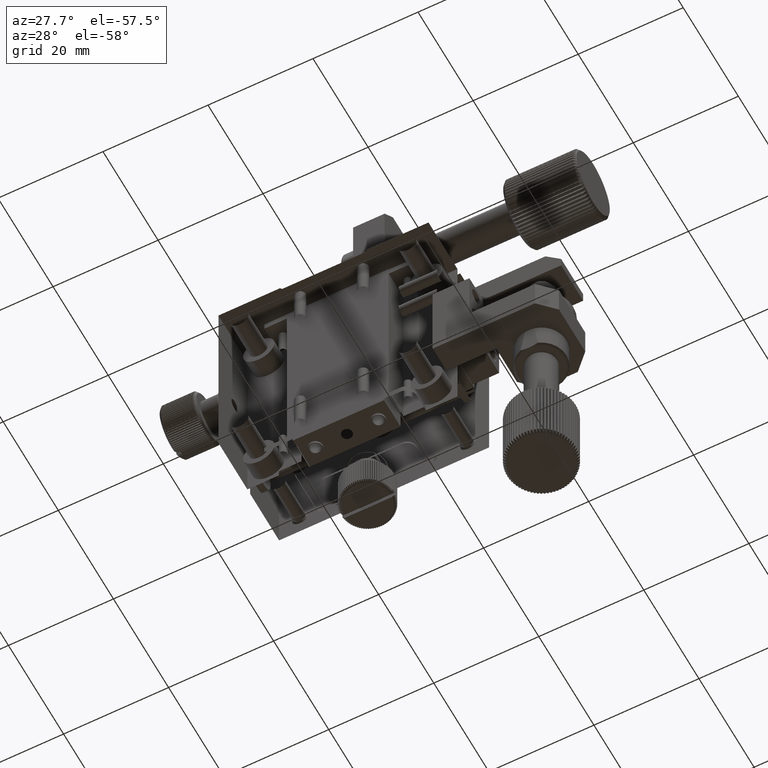
[diagram: clean part render]
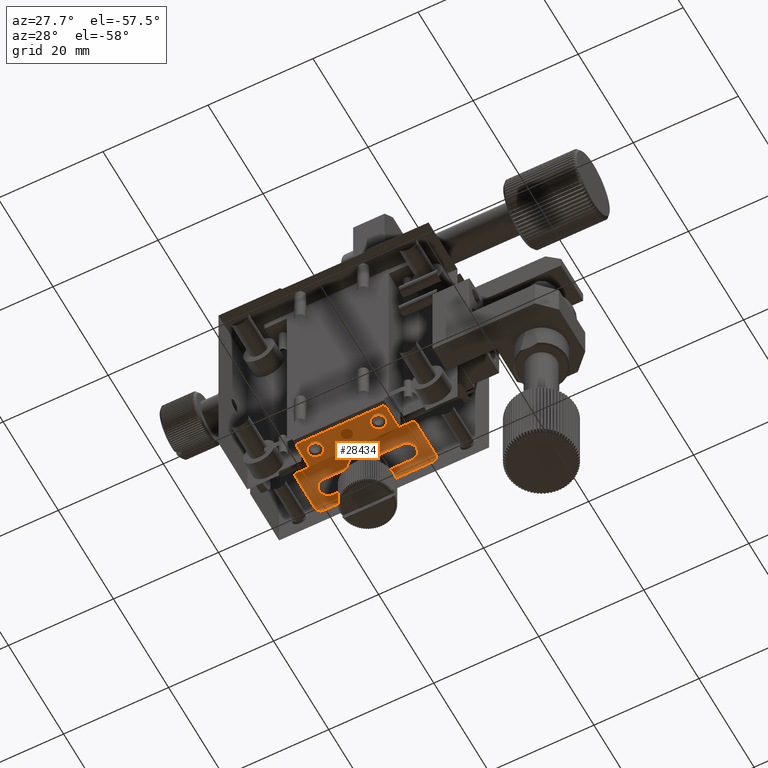
[diagram: same view with one face highlighted and labeled with its STEP entity id]
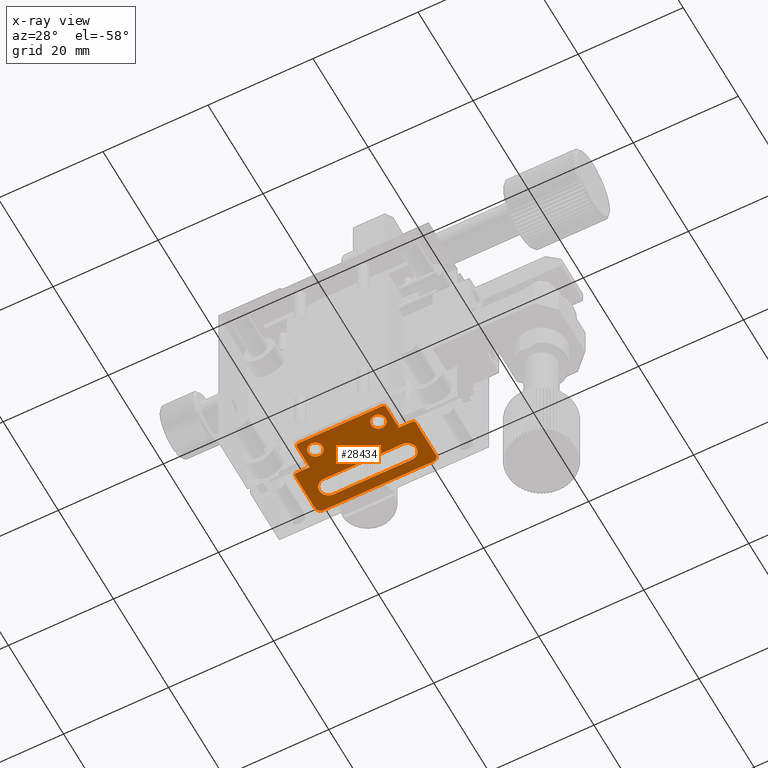
[diagram: x-ray of the same camera — body ghosted, the highlighted face saturated]
A machine part, auxiliary view. The second image highlights one B-rep face of the part: STEP entity #28434.
The next image is the same camera in x-ray: the body ghosted, the highlighted face saturated — about 5% of this face is hidden behind the body in this view.
In plain terms, the highlighted planar face has unit normal (0, 0, 1).
Its self-contained STEP definition (entity closure, byte-faithful):
#172 = ORIENTED_EDGE ( 'NONE', *, *, #46469, .T. ) ;
#956 = AXIS2_PLACEMENT_3D ( 'NONE', #31503, #23338, #20231 ) ;
#1008 = EDGE_CURVE ( 'NONE', #46246, #6740, #34084, .T. ) ;
#1275 = CARTESIAN_POINT ( 'NONE',  ( 9.000000000000431655, 11.64999999999976765, -40.50000000000000711 ) ) ;
#1372 = CARTESIAN_POINT ( 'NONE',  ( 28.50000000000006395, 11.14999999999993285, -40.50000000000000711 ) ) ;
#1432 = DIRECTION ( 'NONE',  ( -1.000000000000000000, 0.000000000000000000, 0.000000000000000000 ) ) ;
#1483 = EDGE_LOOP ( 'NONE', ( #42400 ) ) ;
#1701 = DIRECTION ( 'NONE',  ( 0.000000000000000000, -1.000000000000000000, -0.000000000000000000 ) ) ;
#1843 = FACE_BOUND ( 'NONE', #20347, .T. ) ;
#2092 = FACE_BOUND ( 'NONE', #5731, .T. ) ;
#2283 = DIRECTION ( 'NONE',  ( -1.000000000000000000, -0.000000000000000000, 0.000000000000000000 ) ) ;
#2513 = VERTEX_POINT ( 'NONE', #23003 ) ;
#2553 = CARTESIAN_POINT ( 'NONE',  ( 13.99999999999999112, 8.499999999999781508, -40.50000000000000711 ) ) ;
#2670 = CIRCLE ( 'NONE', #14076, 0.4999999999998339106 ) ;
#2686 = EDGE_CURVE ( 'NONE', #21165, #41440, #12070, .T. ) ;
#2764 = EDGE_CURVE ( 'NONE', #20065, #22789, #2917, .T. ) ;
#2917 = CIRCLE ( 'NONE', #18930, 1.750000000000029310 ) ;
#2983 = DIRECTION ( 'NONE',  ( -0.000000000000000000, 1.000000000000000000, 0.000000000000000000 ) ) ;
#4044 = LINE ( 'NONE', #33206, #34098 ) ;
#4833 = ORIENTED_EDGE ( 'NONE', *, *, #31830, .T. ) ;
#5213 = DIRECTION ( 'NONE',  ( 0.000000000000000000, 0.000000000000000000, 1.000000000000000000 ) ) ;
#5554 = ORIENTED_EDGE ( 'NONE', *, *, #41711, .T. ) ;
#5655 = PLANE ( 'NONE',  #956 ) ;
#5731 = EDGE_LOOP ( 'NONE', ( #11198 ) ) ;
#5873 = EDGE_LOOP ( 'NONE', ( #13518, #12963, #172, #20784, #13252, #41970, #4833, #12399, #41174, #26630, #34470, #42269, #30358, #10943 ) ) ;
#5891 = VECTOR ( 'NONE', #40843, 1000.000000000000000 ) ;
#6098 = EDGE_CURVE ( 'NONE', #41609, #41609, #45288, .T. ) ;
#6455 = VERTEX_POINT ( 'NONE', #24699 ) ;
#6530 = AXIS2_PLACEMENT_3D ( 'NONE', #25228, #7736, #43845 ) ;
#6556 = LINE ( 'NONE', #28817, #25734 ) ;
#6740 = VERTEX_POINT ( 'NONE', #31380 ) ;
#6867 = VECTOR ( 'NONE', #20343, 1000.000000000000000 ) ;
#6937 = VERTEX_POINT ( 'NONE', #37294 ) ;
#7251 = EDGE_CURVE ( 'NONE', #22789, #32557, #35839, .T. ) ;
#7607 = VERTEX_POINT ( 'NONE', #38751 ) ;
#7736 = DIRECTION ( 'NONE',  ( -0.000000000000000000, -0.000000000000000000, -1.000000000000000000 ) ) ;
#8126 = CIRCLE ( 'NONE', #45525, 0.9999999999998898659 ) ;
#8374 = CARTESIAN_POINT ( 'NONE',  ( 12.60000000000014531, 8.499999999999781508, -40.50000000000000711 ) ) ;
#9599 = CARTESIAN_POINT ( 'NONE',  ( 30.50000000000017764, 19.84999999999975273, -40.50000000000000711 ) ) ;
#10181 = AXIS2_PLACEMENT_3D ( 'NONE', #2553, #43381, #39116 ) ;
#10353 = CARTESIAN_POINT ( 'NONE',  ( 31.50000000000017408, 18.84999999999986287, -40.50000000000000711 ) ) ;
#10357 = EDGE_CURVE ( 'NONE', #11228, #7607, #40611, .T. ) ;
#10555 = EDGE_CURVE ( 'NONE', #45232, #18910, #6556, .T. ) ;
#10943 = ORIENTED_EDGE ( 'NONE', *, *, #37986, .T. ) ;
#11198 = ORIENTED_EDGE ( 'NONE', *, *, #6098, .T. ) ;
#11228 = VERTEX_POINT ( 'NONE', #39212 ) ;
#12070 = CIRCLE ( 'NONE', #44876, 0.5000000000000559552 ) ;
#12399 = ORIENTED_EDGE ( 'NONE', *, *, #10555, .T. ) ;
#12465 = CARTESIAN_POINT ( 'NONE',  ( 27.50000000000050804, 17.84999999999980602, -40.50000000000000711 ) ) ;
#12963 = ORIENTED_EDGE ( 'NONE', *, *, #33928, .T. ) ;
#13070 = AXIS2_PLACEMENT_3D ( 'NONE', #15237, #5213, #27438 ) ;
#13161 = LINE ( 'NONE', #42096, #6867 ) ;
#13252 = ORIENTED_EDGE ( 'NONE', *, *, #19727, .T. ) ;
#13395 = CIRCLE ( 'NONE', #6530, 1.750000000000029310 ) ;
#13518 = ORIENTED_EDGE ( 'NONE', *, *, #1008, .T. ) ;
#13701 = DIRECTION ( 'NONE',  ( 0.000000000000000000, 0.000000000000000000, 1.000000000000000000 ) ) ;
#14076 = AXIS2_PLACEMENT_3D ( 'NONE', #29175, #37280, #33477 ) ;
#14831 = VECTOR ( 'NONE', #25932, 1000.000000000000000 ) ;
#15237 = CARTESIAN_POINT ( 'NONE',  ( 12.00000000000021139, 6.549999999999887024, -40.50000000000000711 ) ) ;
#15930 = FACE_BOUND ( 'NONE', #1483, .T. ) ;
#16045 = EDGE_CURVE ( 'NONE', #6937, #34290, #13161, .T. ) ;
#18669 = VECTOR ( 'NONE', #36808, 1000.000000000000000 ) ;
#18862 = CARTESIAN_POINT ( 'NONE',  ( 12.50000000000037836, 17.84999999999980602, -40.50000000000000711 ) ) ;
#18910 = VERTEX_POINT ( 'NONE', #34918 ) ;
#18930 = AXIS2_PLACEMENT_3D ( 'NONE', #39020, #28976, #32107 ) ;
#19339 = LINE ( 'NONE', #43720, #18669 ) ;
#19679 = CARTESIAN_POINT ( 'NONE',  ( 12.00000000000021139, 6.049999999999719158, -40.50000000000000711 ) ) ;
#19727 = EDGE_CURVE ( 'NONE', #41440, #11228, #34798, .T. ) ;
#20065 = VERTEX_POINT ( 'NONE', #12465 ) ;
#20231 = DIRECTION ( 'NONE',  ( 1.000000000000000000, 0.000000000000000000, -0.000000000000000000 ) ) ;
#20343 = DIRECTION ( 'NONE',  ( -0.000000000000000000, 1.000000000000000000, 0.000000000000000000 ) ) ;
#20347 = EDGE_LOOP ( 'NONE', ( #36741, #5554, #22271, #36170 ) ) ;
#20379 = DIRECTION ( 'NONE',  ( -1.000000000000000000, 0.000000000000000000, 0.000000000000000000 ) ) ;
#20784 = ORIENTED_EDGE ( 'NONE', *, *, #2686, .T. ) ;
#21165 = VERTEX_POINT ( 'NONE', #43753 ) ;
#22271 = ORIENTED_EDGE ( 'NONE', *, *, #2764, .T. ) ;
#22383 = VERTEX_POINT ( 'NONE', #41116 ) ;
#22731 = LINE ( 'NONE', #30166, #35337 ) ;
#22789 = VERTEX_POINT ( 'NONE', #31691 ) ;
#23003 = CARTESIAN_POINT ( 'NONE',  ( 8.500000000000486722, 18.84999999999986287, -40.50000000000000711 ) ) ;
#23055 = CARTESIAN_POINT ( 'NONE',  ( 26.00000000000000711, 8.500000000000003553, -40.50000000000000711 ) ) ;
#23338 = DIRECTION ( 'NONE',  ( 0.000000000000000000, 0.000000000000000000, 1.000000000000000000 ) ) ;
#23777 = CARTESIAN_POINT ( 'NONE',  ( 9.500000000000708766, 19.84999999999975273, -40.50000000000000711 ) ) ;
#23870 = DIRECTION ( 'NONE',  ( -1.000000000000000000, 0.000000000000000000, 0.000000000000000000 ) ) ;
#24699 = CARTESIAN_POINT ( 'NONE',  ( 31.50000000000011724, 11.64999999999976765, -40.50000000000000711 ) ) ;
#24929 = VECTOR ( 'NONE', #27385, 1000.000000000000000 ) ;
#25228 = CARTESIAN_POINT ( 'NONE',  ( 12.50000000000037836, 16.09999999999983444, -40.50000000000000711 ) ) ;
#25365 = EDGE_CURVE ( 'NONE', #46129, #46129, #45150, .T. ) ;
#25734 = VECTOR ( 'NONE', #40025, 1000.000000000000000 ) ;
#25932 = DIRECTION ( 'NONE',  ( -1.000000000000000000, -0.000000000000000000, 0.000000000000000000 ) ) ;
#26407 = CARTESIAN_POINT ( 'NONE',  ( 9.500000000000708766, 14.34999999999980425, -40.50000000000000711 ) ) ;
#26550 = CARTESIAN_POINT ( 'NONE',  ( 9.000000000000431655, 11.14999999999971259, -40.50000000000000711 ) ) ;
#26630 = ORIENTED_EDGE ( 'NONE', *, *, #16045, .T. ) ;
#27385 = DIRECTION ( 'NONE',  ( 1.000000000000000000, 0.000000000000000000, -0.000000000000000000 ) ) ;
#27438 = DIRECTION ( 'NONE',  ( -1.000000000000000000, 0.000000000000000000, 0.000000000000000000 ) ) ;
#27476 = DIRECTION ( 'NONE',  ( 0.000000000000000000, 0.000000000000000000, 1.000000000000000000 ) ) ;
#27661 = FACE_OUTER_BOUND ( 'NONE', #5873, .T. ) ;
#28034 = CIRCLE ( 'NONE', #46209, 0.4999999999998339106 ) ;
#28174 = VERTEX_POINT ( 'NONE', #38718 ) ;
#28434 = ADVANCED_FACE ( 'NONE', ( #1843, #27661, #2092, #15930 ), #5655, .T. ) ;
#28467 = CARTESIAN_POINT ( 'NONE',  ( 24.60000000000016129, 8.500000000000003553, -40.50000000000000711 ) ) ;
#28817 = CARTESIAN_POINT ( 'NONE',  ( 9.500000000000708766, 6.049999999999719158, -40.50000000000000711 ) ) ;
#28976 = DIRECTION ( 'NONE',  ( -0.000000000000000000, -0.000000000000000000, -1.000000000000000000 ) ) ;
#29016 = CARTESIAN_POINT ( 'NONE',  ( 12.50000000000037836, 14.34999999999980425, -40.50000000000000711 ) ) ;
#29175 = CARTESIAN_POINT ( 'NONE',  ( 31.00000000000034461, 11.64999999999976765, -40.50000000000000711 ) ) ;
#29945 = AXIS2_PLACEMENT_3D ( 'NONE', #23055, #30739, #30506 ) ;
#30166 = CARTESIAN_POINT ( 'NONE',  ( 8.500000000000374811, 18.84999999999986287, -40.50000000000000711 ) ) ;
#30358 = ORIENTED_EDGE ( 'NONE', *, *, #31411, .T. ) ;
#30461 = DIRECTION ( 'NONE',  ( 0.000000000000000000, 0.000000000000000000, 1.000000000000000000 ) ) ;
#30506 = DIRECTION ( 'NONE',  ( -1.000000000000000000, 0.000000000000000000, 0.000000000000000000 ) ) ;
#30739 = DIRECTION ( 'NONE',  ( -0.000000000000000000, -0.000000000000000000, -1.000000000000000000 ) ) ;
#31380 = CARTESIAN_POINT ( 'NONE',  ( 9.500000000000708766, 19.84999999999986287, -40.50000000000000711 ) ) ;
#31411 = EDGE_CURVE ( 'NONE', #6455, #28174, #39770, .T. ) ;
#31426 = VECTOR ( 'NONE', #2983, 1000.000000000000000 ) ;
#31503 = CARTESIAN_POINT ( 'NONE',  ( 9.500000000000708766, 18.84999999999986287, -40.50000000000000711 ) ) ;
#31691 = CARTESIAN_POINT ( 'NONE',  ( 27.50000000000050804, 14.34999999999974918, -40.50000000000000711 ) ) ;
#31830 = EDGE_CURVE ( 'NONE', #7607, #45232, #41309, .T. ) ;
#32107 = DIRECTION ( 'NONE',  ( -1.000000000000000000, 0.000000000000000000, 0.000000000000000000 ) ) ;
#32557 = VERTEX_POINT ( 'NONE', #29016 ) ;
#33206 = CARTESIAN_POINT ( 'NONE',  ( 9.500000000000708766, 17.84999999999975273, -40.50000000000000711 ) ) ;
#33477 = DIRECTION ( 'NONE',  ( -1.000000000000000000, 0.000000000000000000, 0.000000000000000000 ) ) ;
#33781 = EDGE_CURVE ( 'NONE', #22383, #6455, #2670, .T. ) ;
#33791 = VERTEX_POINT ( 'NONE', #18862 ) ;
#33816 = EDGE_CURVE ( 'NONE', #34290, #22383, #19339, .T. ) ;
#33928 = EDGE_CURVE ( 'NONE', #6740, #2513, #45411, .T. ) ;
#34084 = LINE ( 'NONE', #23777, #38243 ) ;
#34098 = VECTOR ( 'NONE', #47279, 1000.000000000000000 ) ;
#34185 = DIRECTION ( 'NONE',  ( 0.000000000000000000, 0.000000000000000000, 1.000000000000000000 ) ) ;
#34290 = VERTEX_POINT ( 'NONE', #1372 ) ;
#34470 = ORIENTED_EDGE ( 'NONE', *, *, #33816, .T. ) ;
#34606 = EDGE_CURVE ( 'NONE', #32557, #33791, #13395, .T. ) ;
#34798 = LINE ( 'NONE', #41713, #24929 ) ;
#34918 = CARTESIAN_POINT ( 'NONE',  ( 28.00000000000023093, 6.049999999999719158, -40.50000000000000711 ) ) ;
#35337 = VECTOR ( 'NONE', #1701, 1000.000000000000000 ) ;
#35839 = LINE ( 'NONE', #26407, #14831 ) ;
#36170 = ORIENTED_EDGE ( 'NONE', *, *, #7251, .T. ) ;
#36437 = EDGE_CURVE ( 'NONE', #18910, #6937, #28034, .T. ) ;
#36741 = ORIENTED_EDGE ( 'NONE', *, *, #34606, .T. ) ;
#36794 = CARTESIAN_POINT ( 'NONE',  ( 11.49999999999993427, 18.84999999999986287, -40.50000000000000711 ) ) ;
#36808 = DIRECTION ( 'NONE',  ( 1.000000000000000000, 0.000000000000000000, -0.000000000000000000 ) ) ;
#37280 = DIRECTION ( 'NONE',  ( 0.000000000000000000, 0.000000000000000000, 1.000000000000000000 ) ) ;
#37294 = CARTESIAN_POINT ( 'NONE',  ( 28.50000000000006040, 6.549999999999553069, -40.50000000000000711 ) ) ;
#37986 = EDGE_CURVE ( 'NONE', #28174, #46246, #8126, .T. ) ;
#38243 = VECTOR ( 'NONE', #2283, 1000.000000000000000 ) ;
#38718 = CARTESIAN_POINT ( 'NONE',  ( 31.50000000000012434, 18.84999999999986287, -40.50000000000000711 ) ) ;
#38751 = CARTESIAN_POINT ( 'NONE',  ( 11.49999999999998934, 6.549999999999887024, -40.50000000000000711 ) ) ;
#39020 = CARTESIAN_POINT ( 'NONE',  ( 27.50000000000050804, 16.09999999999983444, -40.50000000000000711 ) ) ;
#39116 = DIRECTION ( 'NONE',  ( -1.000000000000000000, 0.000000000000000000, 0.000000000000000000 ) ) ;
#39212 = CARTESIAN_POINT ( 'NONE',  ( 11.49999999999993427, 11.14999999999971081, -40.50000000000000711 ) ) ;
#39340 = AXIS2_PLACEMENT_3D ( 'NONE', #41321, #34185, #1432 ) ;
#39758 = DIRECTION ( 'NONE',  ( -1.000000000000000000, 0.000000000000000000, 0.000000000000000000 ) ) ;
#39770 = LINE ( 'NONE', #10353, #31426 ) ;
#40025 = DIRECTION ( 'NONE',  ( 1.000000000000000000, 0.000000000000000000, -0.000000000000000000 ) ) ;
#40611 = LINE ( 'NONE', #36794, #5891 ) ;
#40843 = DIRECTION ( 'NONE',  ( 0.000000000000000000, -1.000000000000000000, -0.000000000000000000 ) ) ;
#41116 = CARTESIAN_POINT ( 'NONE',  ( 31.00000000000034461, 11.14999999999993463, -40.50000000000000711 ) ) ;
#41174 = ORIENTED_EDGE ( 'NONE', *, *, #36437, .T. ) ;
#41309 = CIRCLE ( 'NONE', #13070, 0.5000000000001669775 ) ;
#41321 = CARTESIAN_POINT ( 'NONE',  ( 9.500000000000708766, 18.84999999999986287, -40.50000000000000711 ) ) ;
#41440 = VERTEX_POINT ( 'NONE', #26550 ) ;
#41609 = VERTEX_POINT ( 'NONE', #8374 ) ;
#41711 = EDGE_CURVE ( 'NONE', #33791, #20065, #4044, .T. ) ;
#41713 = CARTESIAN_POINT ( 'NONE',  ( 9.500000000000708766, 11.14999999999971259, -40.50000000000000711 ) ) ;
#41970 = ORIENTED_EDGE ( 'NONE', *, *, #10357, .T. ) ;
#42037 = CARTESIAN_POINT ( 'NONE',  ( 30.50000000000017764, 18.84999999999986287, -40.50000000000000711 ) ) ;
#42096 = CARTESIAN_POINT ( 'NONE',  ( 28.50000000000006040, 18.84999999999986287, -40.50000000000000711 ) ) ;
#42269 = ORIENTED_EDGE ( 'NONE', *, *, #33781, .T. ) ;
#42400 = ORIENTED_EDGE ( 'NONE', *, *, #25365, .T. ) ;
#43381 = DIRECTION ( 'NONE',  ( -0.000000000000000000, -0.000000000000000000, -1.000000000000000000 ) ) ;
#43720 = CARTESIAN_POINT ( 'NONE',  ( 9.500000000000708766, 11.14999999999993463, -40.50000000000000711 ) ) ;
#43753 = CARTESIAN_POINT ( 'NONE',  ( 8.500000000000374811, 11.64999999999976765, -40.50000000000000711 ) ) ;
#43845 = DIRECTION ( 'NONE',  ( -1.000000000000000000, 0.000000000000000000, 0.000000000000000000 ) ) ;
#44876 = AXIS2_PLACEMENT_3D ( 'NONE', #1275, #30461, #20379 ) ;
#45150 = CIRCLE ( 'NONE', #29945, 1.399999999999845812 ) ;
#45232 = VERTEX_POINT ( 'NONE', #19679 ) ;
#45288 = CIRCLE ( 'NONE', #10181, 1.399999999999845812 ) ;
#45411 = CIRCLE ( 'NONE', #39340, 1.000000000000111910 ) ;
#45525 = AXIS2_PLACEMENT_3D ( 'NONE', #42037, #27476, #23870 ) ;
#46129 = VERTEX_POINT ( 'NONE', #28467 ) ;
#46209 = AXIS2_PLACEMENT_3D ( 'NONE', #46447, #13701, #39758 ) ;
#46246 = VERTEX_POINT ( 'NONE', #9599 ) ;
#46447 = CARTESIAN_POINT ( 'NONE',  ( 28.00000000000023093, 6.549999999999553957, -40.50000000000000711 ) ) ;
#46469 = EDGE_CURVE ( 'NONE', #2513, #21165, #22731, .T. ) ;
#47279 = DIRECTION ( 'NONE',  ( 1.000000000000000000, 0.000000000000000000, -0.000000000000000000 ) ) ;